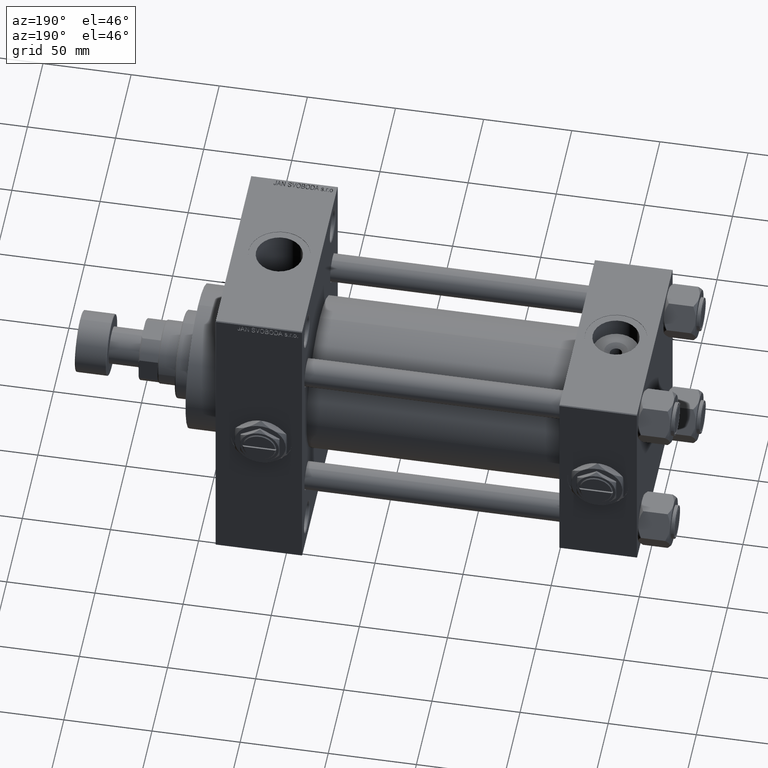
[diagram: clean part render]
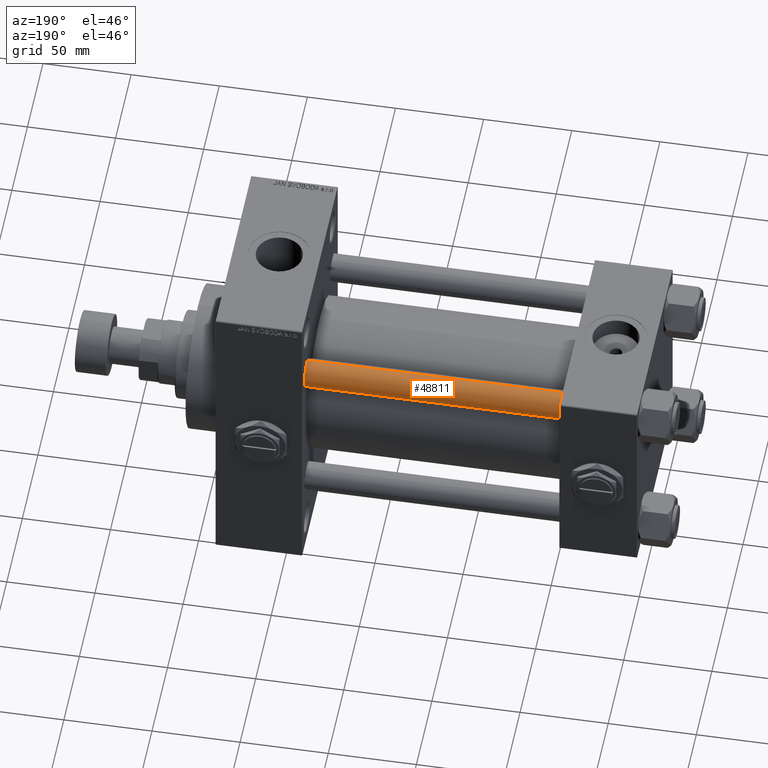
[diagram: same view with one face highlighted and labeled with its STEP entity id]
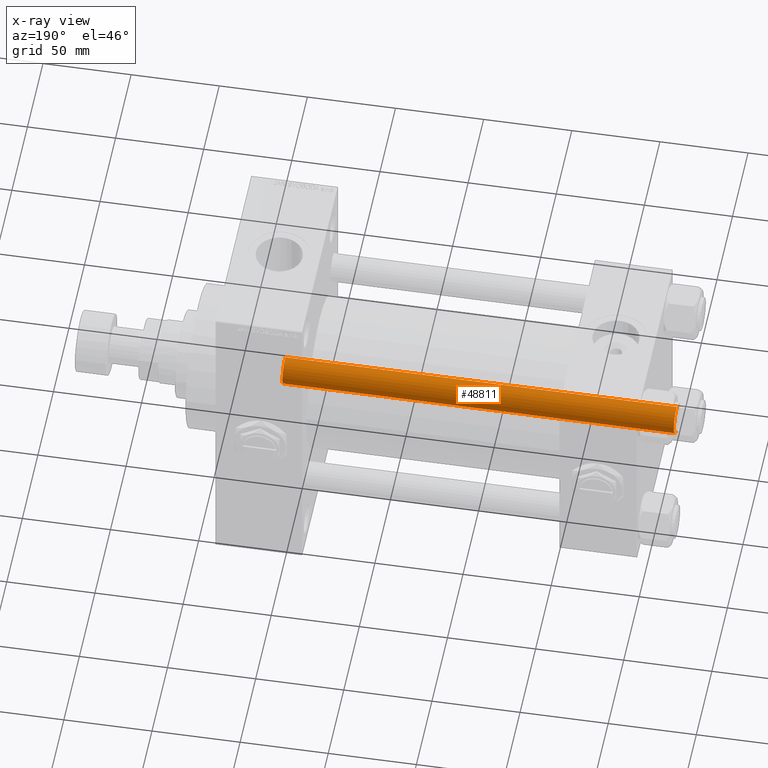
[diagram: x-ray of the same camera — body ghosted, the highlighted face saturated]
A machine part, auxiliary view. The second image highlights one B-rep face of the part: STEP entity #48811.
The next image is the same camera in x-ray: the body ghosted, the highlighted face saturated — about 0% of this face is hidden behind the body in this view.
In plain terms, the highlighted cylindrical surface (edge-blend (fillet) strip) has radius 8 mm, axis along (-1, -0, 0).
Its self-contained STEP definition (entity closure, byte-faithful):
#1332 = AXIS2_PLACEMENT_3D ( 'NONE', #2652, #33651, #34826 ) ;
#2243 = EDGE_CURVE ( 'NONE', #27369, #35218, #48711, .T. ) ;
#2652 = CARTESIAN_POINT ( 'NONE',  ( 0.000000000000000000, 0.000000000000000000, 223.0000000000000000 ) ) ;
#3990 = DIRECTION ( 'NONE',  ( 0.000000000000000000, 0.000000000000000000, -1.000000000000000000 ) ) ;
#6839 = ORIENTED_EDGE ( 'NONE', *, *, #38737, .T. ) ;
#7282 = DIRECTION ( 'NONE',  ( -0.000000000000000000, -0.000000000000000000, -1.000000000000000000 ) ) ;
#7540 = CARTESIAN_POINT ( 'NONE',  ( -8.000000000000000000, 0.000000000000000000, 223.0000000000000000 ) ) ;
#7768 = ORIENTED_EDGE ( 'NONE', *, *, #23512, .T. ) ;
#10933 = DIRECTION ( 'NONE',  ( 1.000000000000000000, 0.000000000000000000, 0.000000000000000000 ) ) ;
#11053 = AXIS2_PLACEMENT_3D ( 'NONE', #45795, #49853, #10933 ) ;
#14581 = AXIS2_PLACEMENT_3D ( 'NONE', #24080, #3990, #16438 ) ;
#16176 = EDGE_CURVE ( 'NONE', #27369, #22411, #49771, .T. ) ;
#16438 = DIRECTION ( 'NONE',  ( 1.000000000000000000, 0.000000000000000000, 0.000000000000000000 ) ) ;
#19883 = DIRECTION ( 'NONE',  ( -0.000000000000000000, -0.000000000000000000, -1.000000000000000000 ) ) ;
#22411 = VERTEX_POINT ( 'NONE', #26453 ) ;
#23512 = EDGE_CURVE ( 'NONE', #35938, #22411, #31368, .T. ) ;
#24080 = CARTESIAN_POINT ( 'NONE',  ( 0.000000000000000000, 0.000000000000000000, 222.5000000000001137 ) ) ;
#26453 = CARTESIAN_POINT ( 'NONE',  ( -8.000000000000000000, 0.000000000000000000, 0.5000000000001669775 ) ) ;
#27155 = VECTOR ( 'NONE', #7282, 1000.000000000000000 ) ;
#27369 = VERTEX_POINT ( 'NONE', #44103 ) ;
#29848 = EDGE_LOOP ( 'NONE', ( #43253, #6839, #7768, #41243 ) ) ;
#31368 = CIRCLE ( 'NONE', #11053, 8.000000000000000000 ) ;
#33651 = DIRECTION ( 'NONE',  ( -0.000000000000000000, -0.000000000000000000, -1.000000000000000000 ) ) ;
#34826 = DIRECTION ( 'NONE',  ( -1.000000000000000000, 0.000000000000000000, 0.000000000000000000 ) ) ;
#35218 = VERTEX_POINT ( 'NONE', #40734 ) ;
#35345 = FACE_OUTER_BOUND ( 'NONE', #29848, .T. ) ;
#35938 = VERTEX_POINT ( 'NONE', #46113 ) ;
#37470 = CYLINDRICAL_SURFACE ( 'NONE', #1332, 8.000000000000000000 ) ;
#38737 = EDGE_CURVE ( 'NONE', #35218, #35938, #46848, .T. ) ;
#40734 = CARTESIAN_POINT ( 'NONE',  ( 8.000000000000000000, 9.797174393178823685E-16, 222.5000000000001137 ) ) ;
#41243 = ORIENTED_EDGE ( 'NONE', *, *, #16176, .F. ) ;
#43023 = CARTESIAN_POINT ( 'NONE',  ( 8.000000000000000000, 9.797174393178823685E-16, 223.0000000000000000 ) ) ;
#43253 = ORIENTED_EDGE ( 'NONE', *, *, #2243, .T. ) ;
#44050 = VECTOR ( 'NONE', #19883, 1000.000000000000000 ) ;
#44103 = CARTESIAN_POINT ( 'NONE',  ( -8.000000000000000000, 0.000000000000000000, 222.5000000000001137 ) ) ;
#45795 = CARTESIAN_POINT ( 'NONE',  ( 0.000000000000000000, 0.000000000000000000, 0.5000000000001669775 ) ) ;
#46113 = CARTESIAN_POINT ( 'NONE',  ( 8.000000000000000000, 9.797174393178823685E-16, 0.5000000000001669775 ) ) ;
#46848 = LINE ( 'NONE', #43023, #44050 ) ;
#48711 = CIRCLE ( 'NONE', #14581, 8.000000000000000000 ) ;
#48811 = ADVANCED_FACE ( 'NONE', ( #35345 ), #37470, .T. ) ;
#49771 = LINE ( 'NONE', #7540, #27155 ) ;
#49853 = DIRECTION ( 'NONE',  ( -0.000000000000000000, -0.000000000000000000, 1.000000000000000000 ) ) ;